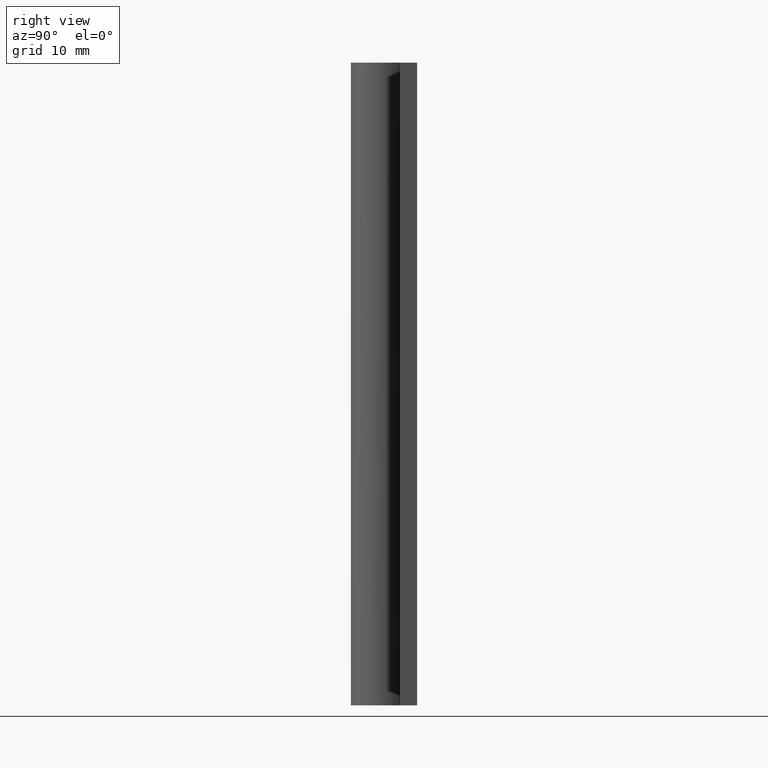
[diagram: clean part render]
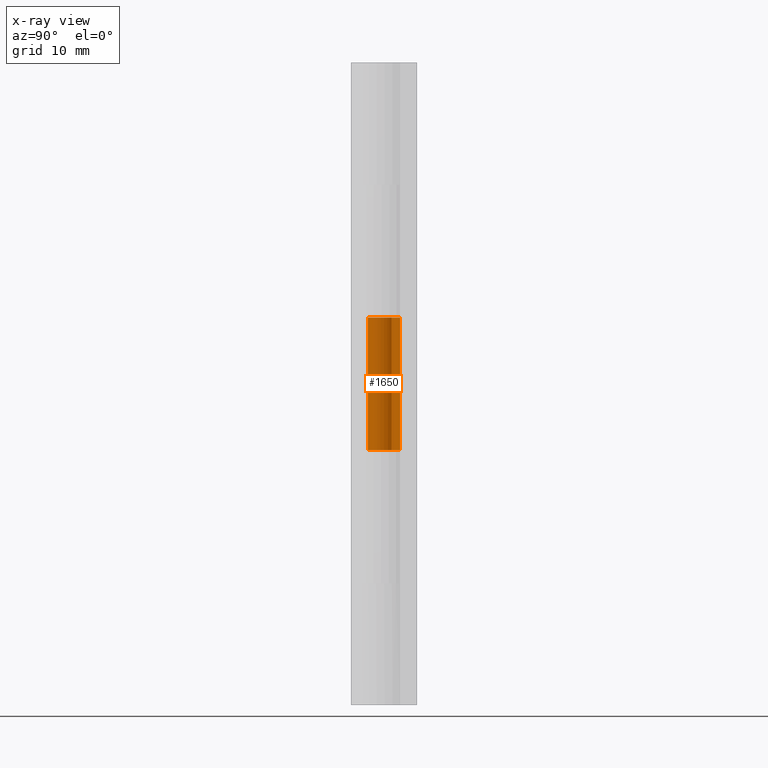
[diagram: x-ray — body ghosted, one internal face saturated and labeled with its STEP entity id]
A machine part, right view, then the same camera in x-ray: the body is ghosted and one INTERNAL B-rep face — a face not visible from any outside direction — is saturated and labeled: STEP entity #1650.
In plain terms, the highlighted face is a freeform B-spline surface patch.
Its self-contained STEP definition (entity closure, byte-faithful):
#911=CARTESIAN_POINT('',(1.325797621821314,0.701612903225807,23.800002999999951));
#912=VERTEX_POINT('',#911);
#913=CARTESIAN_POINT('',(0.0,1.500000000000000,23.800002999999951));
#914=VERTEX_POINT('',#913);
#915=CARTESIAN_POINT('',(1.325797621821315,0.701612903225807,23.800002999999951));
#916=CARTESIAN_POINT('',(1.859045520162959,-0.306035035134630,23.800002999999954));
#917=CARTESIAN_POINT('',(1.030933009042893,-1.089576583295441,23.800002999999951));
#918=CARTESIAN_POINT('',(0.202820497922827,-1.873118131456252,23.800002999999954));
#919=CARTESIAN_POINT('',(-0.773815431857393,-1.284994037892533,23.800002999999951));
#920=CARTESIAN_POINT('',(-1.750451361637613,-0.696869944328815,23.800002999999954));
#921=CARTESIAN_POINT('',(-1.445249296287461,0.401565027835592,23.800002999999951));
#922=CARTESIAN_POINT('',(-1.140047230937308,1.500000000000000,23.800002999999954));
#923=CARTESIAN_POINT('',(0.0,1.500000000000000,23.800002999999951));
#931=(BOUNDED_CURVE()B_SPLINE_CURVE(2,(#915,#916,#917,#918,#919,#920,#921,#922,#923),.UNSPECIFIED.,.F.,.U.)B_SPLINE_CURVE_WITH_KNOTS((3,2,2,2,3),(0.0,0.250000000000000,0.500000000000000,0.750000000000000,1.0),.UNSPECIFIED.)CURVE()GEOMETRIC_REPRESENTATION_ITEM()RATIONAL_B_SPLINE_CURVE((1.0,0.796150117301085,1.0,0.796150117301085,1.0,0.796150117301085,1.0,0.796150117301085,1.0))REPRESENTATION_ITEM(''));
#932=EDGE_CURVE('',#912,#914,#931,.T.);
#1137=CARTESIAN_POINT('',(1.325797621821314,0.701612903225807,36.199996999999897));
#1138=VERTEX_POINT('',#1137);
#1144=CARTESIAN_POINT('',(0.0,1.500000000000000,36.199996999999897));
#1145=VERTEX_POINT('',#1144);
#1146=CARTESIAN_POINT('',(0.0,1.500000000000000,36.199996999999897));
#1147=CARTESIAN_POINT('',(-1.140047230937307,1.500000000000000,36.199996999999911));
#1148=CARTESIAN_POINT('',(-1.445249296287460,0.401565027835593,36.199996999999897));
#1149=CARTESIAN_POINT('',(-1.750451361637614,-0.696869944328814,36.199996999999911));
#1150=CARTESIAN_POINT('',(-0.773815431857394,-1.284994037892532,36.199996999999897));
#1151=CARTESIAN_POINT('',(0.202820497922826,-1.873118131456251,36.199996999999911));
#1152=CARTESIAN_POINT('',(1.030933009042892,-1.089576583295442,36.199996999999897));
#1153=CARTESIAN_POINT('',(1.859045520162959,-0.306035035134632,36.199996999999911));
#1154=CARTESIAN_POINT('',(1.325797621821315,0.701612903225807,36.199996999999897));
#1162=(BOUNDED_CURVE()B_SPLINE_CURVE(2,(#1146,#1147,#1148,#1149,#1150,#1151,#1152,#1153,#1154),.UNSPECIFIED.,.F.,.U.)B_SPLINE_CURVE_WITH_KNOTS((3,2,2,2,3),(0.0,0.250000000000000,0.500000000000000,0.750000000000000,1.0),.UNSPECIFIED.)CURVE()GEOMETRIC_REPRESENTATION_ITEM()RATIONAL_B_SPLINE_CURVE((1.0,0.796150117301085,1.0,0.796150117301085,1.0,0.796150117301085,1.0,0.796150117301085,1.0))REPRESENTATION_ITEM(''));
#1163=EDGE_CURVE('',#1145,#1138,#1162,.T.);
#1467=CARTESIAN_POINT('',(1.325797621821314,0.701612903225807,23.800002999999951));
#1468=CARTESIAN_POINT('',(1.325797621821314,0.701612903225807,36.199996999999897));
#1469=QUASI_UNIFORM_CURVE('',1,(#1467,#1468),.UNSPECIFIED.,.F.,.U.);
#1470=EDGE_CURVE('',#912,#1138,#1469,.T.);
#1570=CARTESIAN_POINT('',(0.0,1.500000000000000,23.800002999999951));
#1571=CARTESIAN_POINT('',(0.0,1.500000000000000,36.199996999999897));
#1572=QUASI_UNIFORM_CURVE('',1,(#1570,#1571),.UNSPECIFIED.,.F.,.U.);
#1573=EDGE_CURVE('',#914,#1145,#1572,.T.);
#1622=CARTESIAN_POINT('',(1.306977219388971,0.736077813820164,23.490003149999950));
#1623=CARTESIAN_POINT('',(1.306977219388971,0.736077813820164,36.517746846249914));
#1624=CARTESIAN_POINT('',(2.194637495020419,-0.840048700285423,23.490003149999939));
#1625=CARTESIAN_POINT('',(2.194637495020419,-0.840048700285423,36.517746846249906));
#1626=CARTESIAN_POINT('',(0.481444017379598,-1.420637764572444,23.490003149999950));
#1627=CARTESIAN_POINT('',(0.481444017379598,-1.420637764572444,36.517746846249914));
#1628=CARTESIAN_POINT('',(-1.231749460261222,-2.001226828859465,23.490003149999939));
#1629=CARTESIAN_POINT('',(-1.231749460261222,-2.001226828859465,36.517746846249906));
#1630=CARTESIAN_POINT('',(-1.485202906083400,-0.210172138404261,23.490003149999950));
#1631=CARTESIAN_POINT('',(-1.485202906083400,-0.210172138404261,36.517746846249914));
#1632=CARTESIAN_POINT('',(-1.738656351905579,1.580882552050944,23.490003149999939));
#1633=CARTESIAN_POINT('',(-1.738656351905579,1.580882552050944,36.517746846249906));
#1634=CARTESIAN_POINT('',(0.068363017834988,1.498441356140603,23.490003149999950));
#1635=CARTESIAN_POINT('',(0.068363017834988,1.498441356140603,36.517746846249914));
#1643=(BOUNDED_SURFACE()B_SPLINE_SURFACE(1,2,((#1622,#1624,#1626,#1628,#1630,#1632,#1634),(#1623,#1625,#1627,#1629,#1631,#1633,#1635)),.UNSPECIFIED.,.F.,.F.,.U.)B_SPLINE_SURFACE_WITH_KNOTS((2,2),(3,2,2,3),(0.0,13.027743696249960),(0.0,2.819123256080202,5.638246512160404,8.457369768240607),.UNSPECIFIED.)GEOMETRIC_REPRESENTATION_ITEM()RATIONAL_B_SPLINE_SURFACE(((1.0,0.638320090924328,1.0,0.638320090924328,1.0,0.638320090924328,1.0),(1.0,0.638320090924328,1.0,0.638320090924328,1.0,0.638320090924328,1.0)))REPRESENTATION_ITEM('')SURFACE());
#1644=ORIENTED_EDGE('',*,*,#1470,.F.);
#1645=ORIENTED_EDGE('',*,*,#932,.T.);
#1646=ORIENTED_EDGE('',*,*,#1573,.T.);
#1647=ORIENTED_EDGE('',*,*,#1163,.T.);
#1648=EDGE_LOOP('',(#1644,#1645,#1646,#1647));
#1649=FACE_OUTER_BOUND('',#1648,.T.);
#1650=ADVANCED_FACE('',(#1649),#1643,.F.);